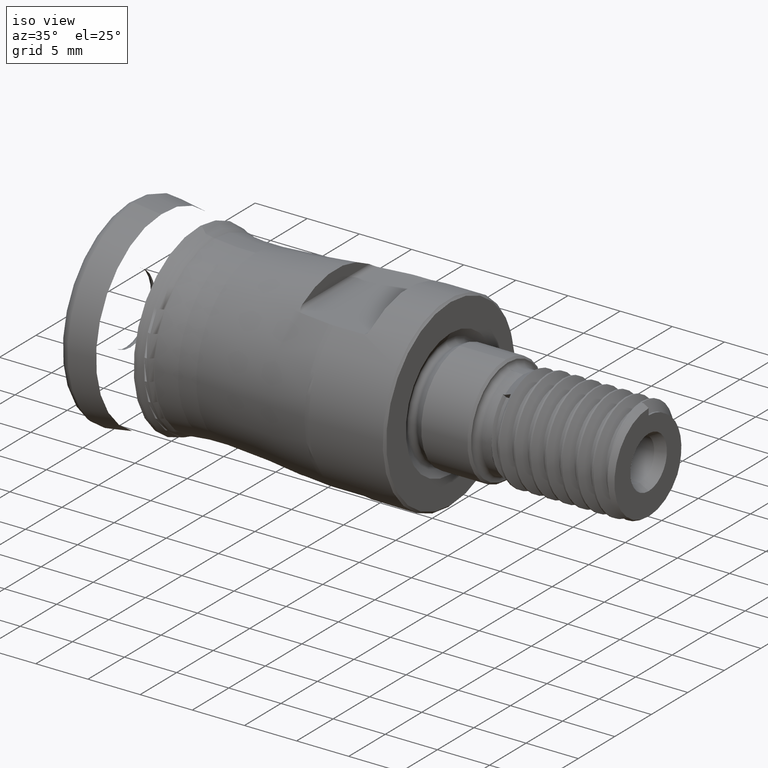
[diagram: clean part render]
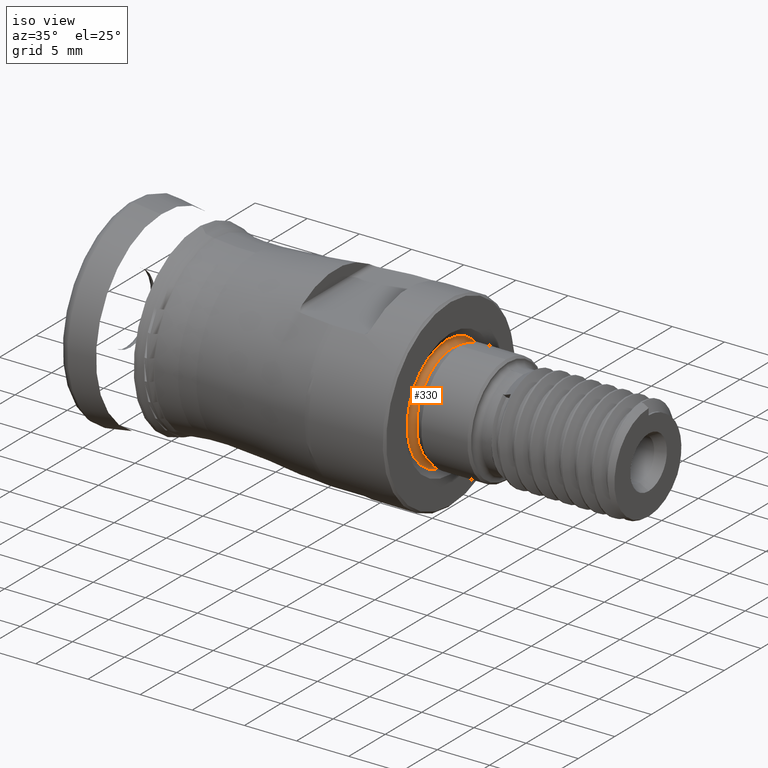
[diagram: same view with one face highlighted and labeled with its STEP entity id]
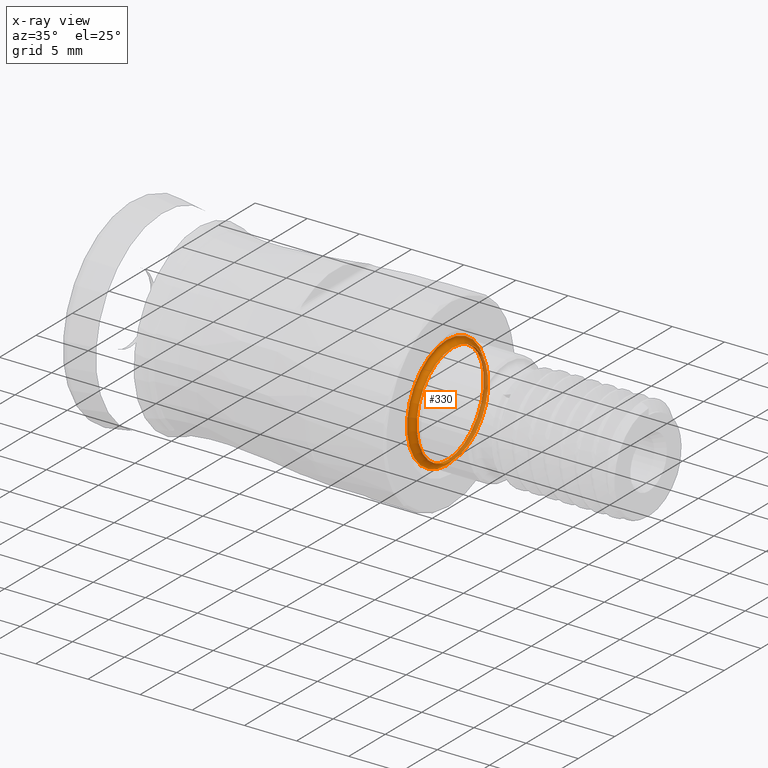
[diagram: x-ray of the same camera — body ghosted, the highlighted face saturated]
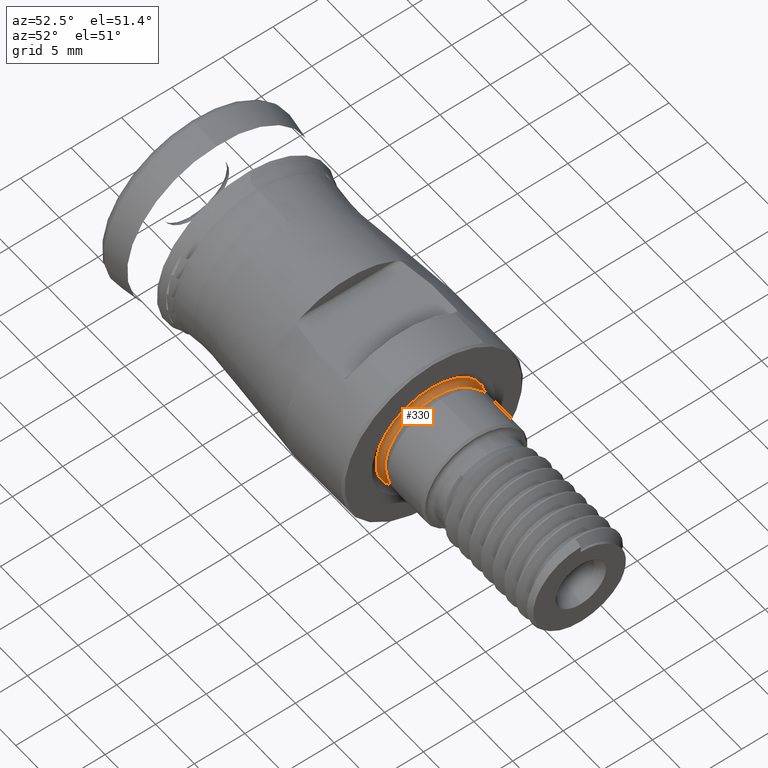
[diagram: same view with one face highlighted and labeled with its STEP entity id]
A machine part, iso view. The second image highlights one B-rep face of the part: STEP entity #330.
The next image is the same camera in x-ray: the body ghosted, the highlighted face saturated — about 23% of this face is hidden behind the body in this view.
A second angle (auxiliary view) of the same face is appended — the face is thin or edge-on in the first view.
In plain terms, the highlighted toroidal blend (fillet) surface has major radius 5.25 mm and minor (blend) radius 0.4 mm.
Its self-contained STEP definition (entity closure, byte-faithful):
#172=TOROIDAL_SURFACE('',#1152,5.25,0.400000000000002);
#330=ADVANCED_FACE('',(#419,#420),#172,.F.);
#419=FACE_BOUND('',#526,.T.);
#420=FACE_BOUND('',#527,.T.);
#526=EDGE_LOOP('',(#677));
#527=EDGE_LOOP('',(#678));
#677=ORIENTED_EDGE('',*,*,#988,.T.);
#678=ORIENTED_EDGE('',*,*,#987,.F.);
#893=VERTEX_POINT('',#1713);
#894=VERTEX_POINT('',#1716);
#987=EDGE_CURVE('',#893,#893,#1080,.T.);
#988=EDGE_CURVE('',#894,#894,#1081,.T.);
#1080=CIRCLE('',#1149,5.43469944529402);
#1081=CIRCLE('',#1151,4.89519566672871);
#1149=AXIS2_PLACEMENT_3D('',#1712,#1273,#1274);
#1151=AXIS2_PLACEMENT_3D('',#1715,#1277,#1278);
#1152=AXIS2_PLACEMENT_3D('',#1717,#1279,#1280);
#1273=DIRECTION('',(-1.,0.,0.));
#1274=DIRECTION('',(0.,0.,1.));
#1277=DIRECTION('',(-1.,0.,0.));
#1278=DIRECTION('',(0.,0.,1.));
#1279=DIRECTION('',(-1.,0.,0.));
#1280=DIRECTION('',(0.,0.,1.));
#1712=CARTESIAN_POINT('',(31.3951956667287,0.,0.));
#1713=CARTESIAN_POINT('',(31.3951956667287,0.,5.43469944529402));
#1715=CARTESIAN_POINT('',(31.934699445294,0.,0.));
#1716=CARTESIAN_POINT('',(31.934699445294,0.,4.89519566672871));
#1717=CARTESIAN_POINT('',(31.75,0.,0.));